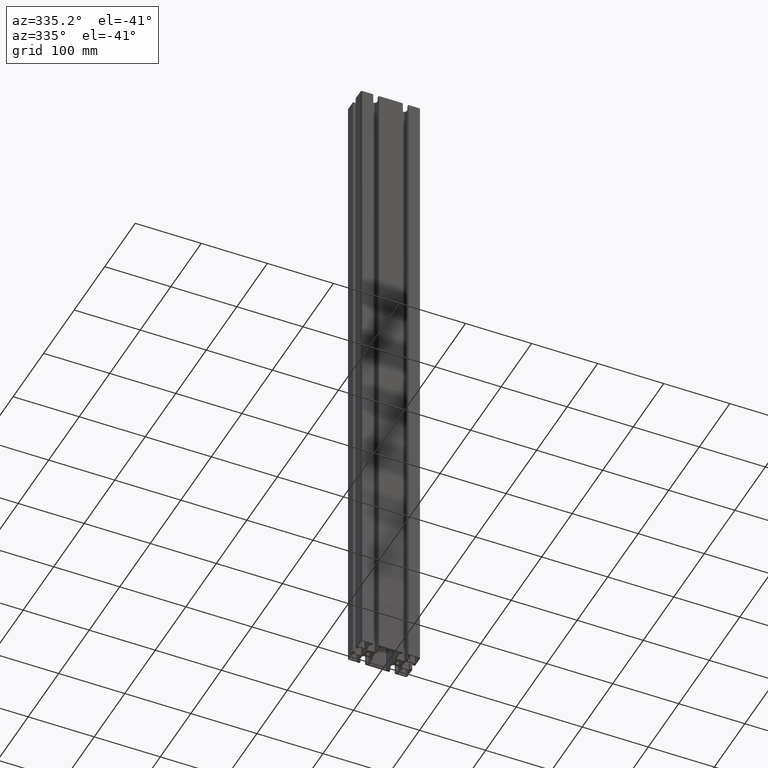
[diagram: clean part render]
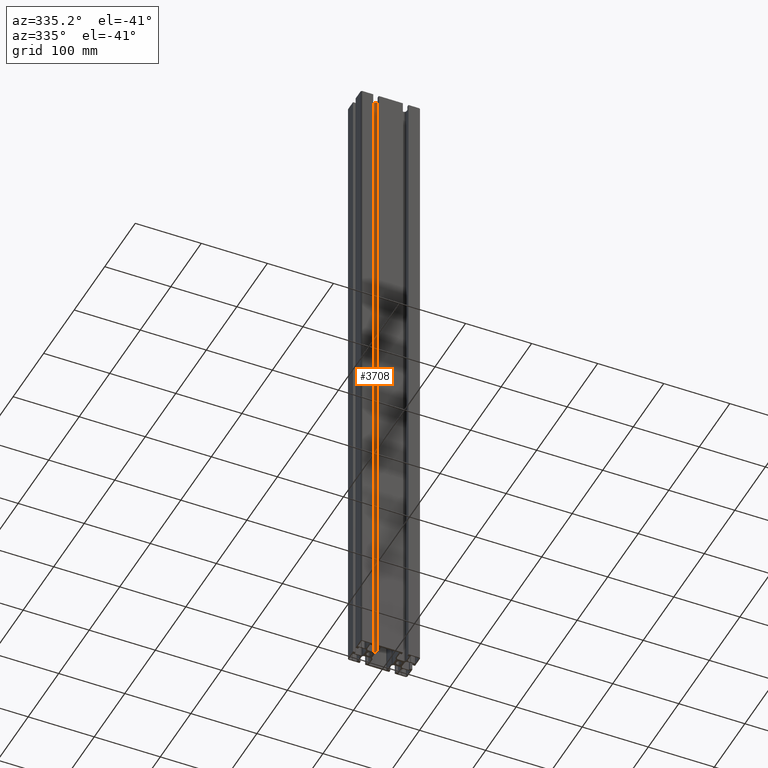
[diagram: same view with one face highlighted and labeled with its STEP entity id]
A machine part, auxiliary view. The second image highlights one B-rep face of the part: STEP entity #3708.
In plain terms, the highlighted cylindrical surface (edge-blend (fillet) strip) has radius 3.2 mm, axis along (0, 0, 1).
Its self-contained STEP definition (entity closure, byte-faithful):
#242=FACE_OUTER_BOUND('',#444,.T.);
#444=EDGE_LOOP('',(#3203,#3204,#3205,#3206));
#830=LINE('',#6241,#1216);
#831=LINE('',#6243,#1217);
#1216=VECTOR('',#5045,10.);
#1217=VECTOR('',#5048,10.);
#1347=CIRCLE('',#3911,3.2);
#1440=CIRCLE('',#4013,3.2);
#1601=VERTEX_POINT('',#5633);
#1602=VERTEX_POINT('',#5635);
#1791=VERTEX_POINT('',#6042);
#1792=VERTEX_POINT('',#6044);
#2009=EDGE_CURVE('',#1602,#1601,#1347,.T.);
#2219=EDGE_CURVE('',#1791,#1792,#1440,.T.);
#2318=EDGE_CURVE('',#1601,#1792,#830,.T.);
#2319=EDGE_CURVE('',#1602,#1791,#831,.T.);
#3203=ORIENTED_EDGE('',*,*,#2009,.T.);
#3204=ORIENTED_EDGE('',*,*,#2318,.T.);
#3205=ORIENTED_EDGE('',*,*,#2219,.F.);
#3206=ORIENTED_EDGE('',*,*,#2319,.F.);
#3563=CYLINDRICAL_SURFACE('',#4091,3.2);
#3708=ADVANCED_FACE('',(#242),#3563,.F.);
#3911=AXIS2_PLACEMENT_3D('',#5636,#4494,#4495);
#4013=AXIS2_PLACEMENT_3D('',#6045,#4815,#4816);
#4091=AXIS2_PLACEMENT_3D('',#6242,#5046,#5047);
#4494=DIRECTION('center_axis',(0.,0.,-1.));
#4495=DIRECTION('ref_axis',(-1.,0.,0.));
#4815=DIRECTION('center_axis',(0.,0.,-1.));
#4816=DIRECTION('ref_axis',(-1.,0.,0.));
#5045=DIRECTION('',(0.,0.,1.));
#5046=DIRECTION('center_axis',(0.,0.,1.));
#5047=DIRECTION('ref_axis',(-1.,0.,0.));
#5048=DIRECTION('',(0.,0.,1.));
#5633=CARTESIAN_POINT('',(-15.35,-9.95,0.));
#5635=CARTESIAN_POINT('',(-18.55,-6.75,0.));
#5636=CARTESIAN_POINT('Origin',(-18.55,-9.95,0.));
#6042=CARTESIAN_POINT('',(-18.55,-6.75,1000.));
#6044=CARTESIAN_POINT('',(-15.35,-9.95,1000.));
#6045=CARTESIAN_POINT('Origin',(-18.55,-9.95,1000.));
#6241=CARTESIAN_POINT('',(-15.35,-9.95,0.));
#6242=CARTESIAN_POINT('Origin',(-18.55,-9.95,0.));
#6243=CARTESIAN_POINT('',(-18.55,-6.75,0.));